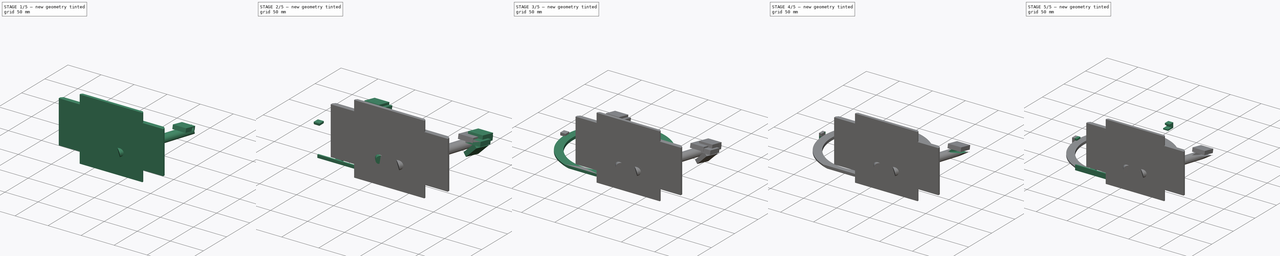
[diagram: build sequence overview — one tinted view per stage of 5, left to right]
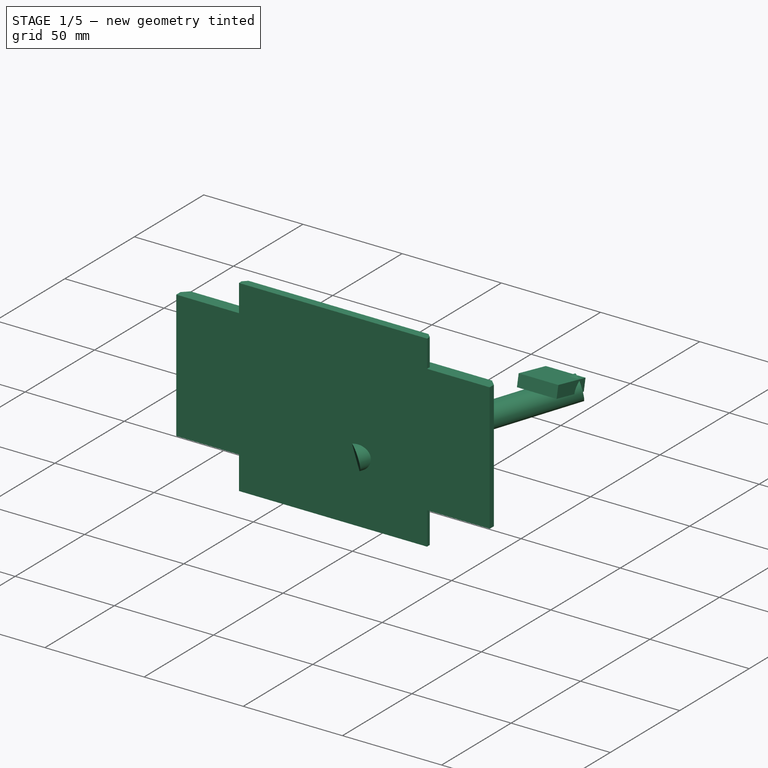
[diagram: stage 1 of 5 — iso view after this stage's code; geometry added in this stage tinted green]
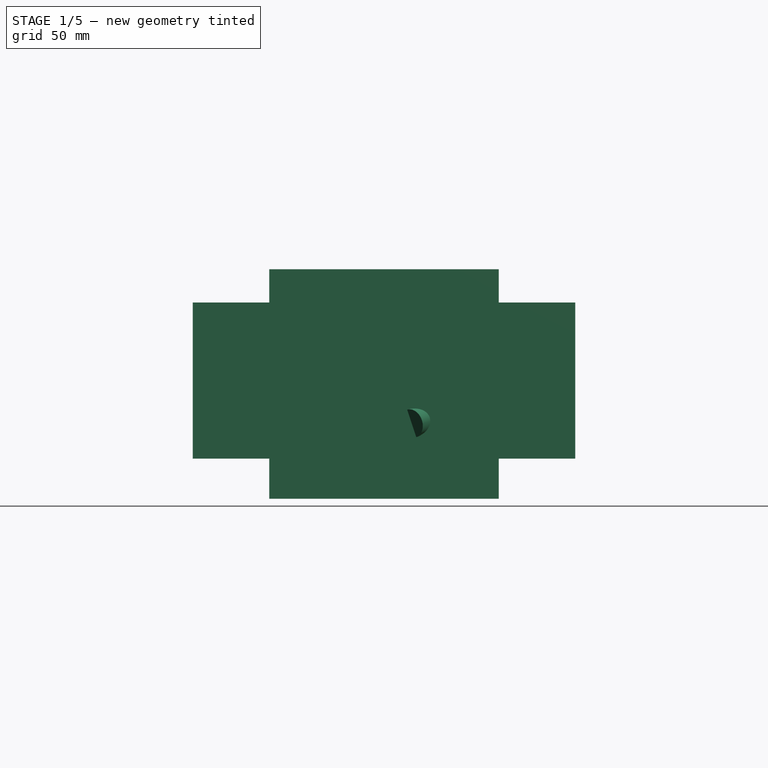
[diagram: stage 1 of 5 — front view after this stage's code; geometry added in this stage tinted green]
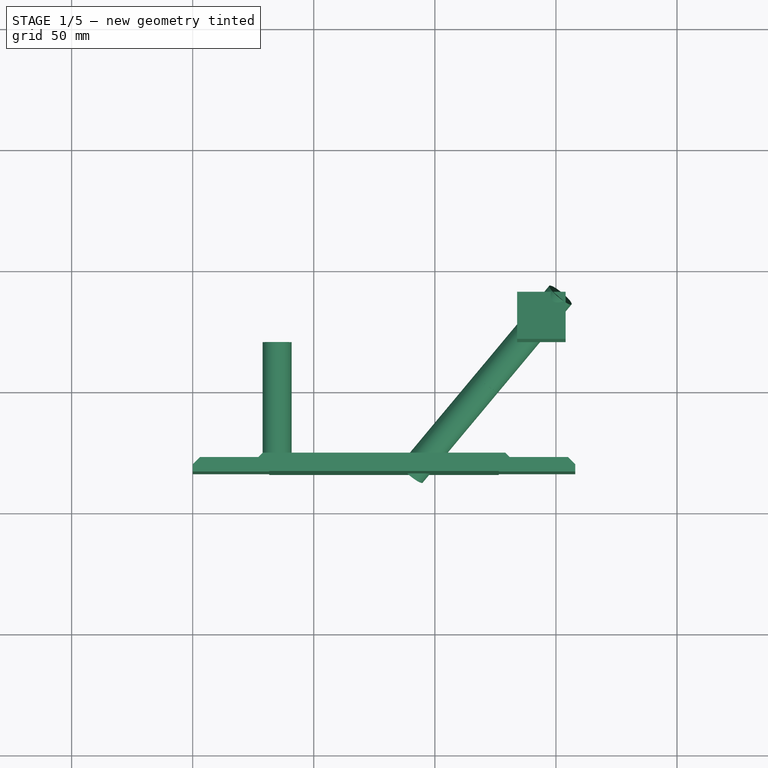
[diagram: stage 1 of 5 — top view after this stage's code; geometry added in this stage tinted green]
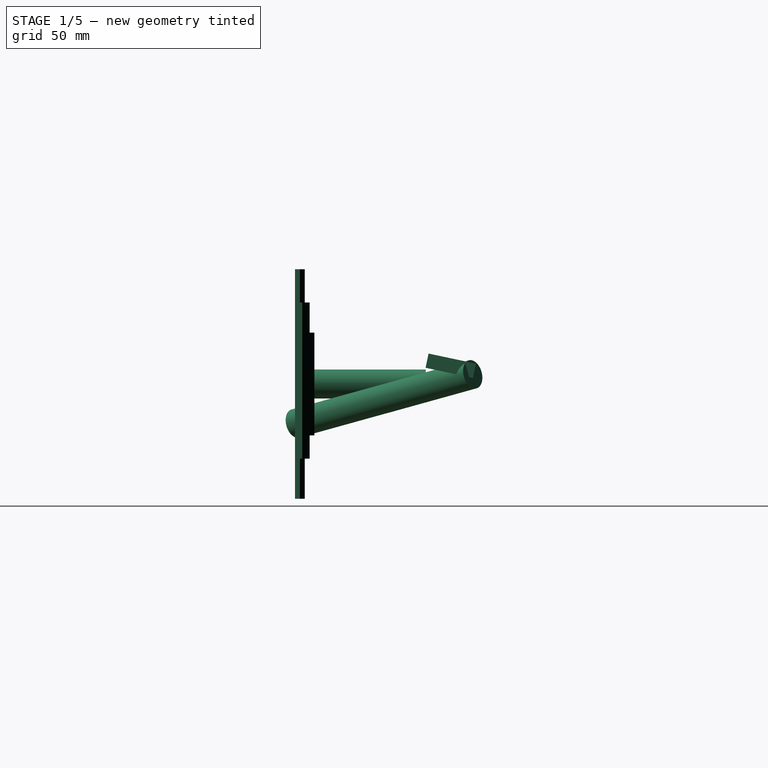
[diagram: stage 1 of 5 — right view after this stage's code; geometry added in this stage tinted green]
FCSTD DOCUMENT  (FreeCAD 0.19R0.19.2)
Label: waferHolder_025
License: All rights reserved
LicenseURL: http://en.wikipedia.org/wiki/All_rights_reserved
objects: Part::Box×56, Part::Chamfer×36, Part::MultiFuse×25, Part::Cylinder×16, Part::Cut×15, Sketcher::SketchObject×9, Part::Extrusion×9, Part::Fuse×5, Part::Mirroring×2
note: 173 computed .brp shape members not serialized (recipe doc carries the construction recipe); baked Part::Feature solids carry a one-line shape summary decoded from their .brp

FEATURE [Part::Box] Box018  label="base001"
  AttacherType = Attacher::AttachEngine3D
  Height = 64.44
  Length = 158
  Placement = pos=(0,-84,16.6) rot=(0,0,1;0rad)
  Width = 6
FEATURE [Part::Box] Box019  label="base002"
  AttacherType = Attacher::AttachEngine3D
  Height = 94.8
  Length = 94.8
  Placement = pos=(31.6,-84,0) rot=(0,0,1;0rad)
  Width = 4
FEATURE [Part::Box] Box020  label="base003"
  AttacherType = Attacher::AttachEngine3D
  Height = 42.44
  Length = 104.28
  Placement = pos=(26.86,-84,26.18) rot=(0,0,1;0rad)
  Width = 8
FEATURE [Part::Chamfer] Chamfer014
  Base = -> Box018
  Edges = 1 edges r=3: [Edge3]
FEATURE [Part::Chamfer] Chamfer015
  Base = -> Chamfer014
  Edges = 1 edges r=3: [Edge15]
FEATURE [Part::Chamfer] Chamfer016
  Base = -> Box019
  Edges = 1 edges r=2: [Edge3]
FEATURE [Part::Chamfer] Chamfer017
  Base = -> Box020
  Edges = 1 edges r=2: [Edge3]
FEATURE [Part::Chamfer] Chamfer018
  Base = -> Chamfer016
  Edges = 1 edges r=2: [Edge15]
FEATURE [Part::Chamfer] Chamfer019
  Base = -> Chamfer017
  Edges = 1 edges r=2: [Edge15]
FEATURE [Part::MultiFuse] Fusion002  label="base004"
  Shapes = -> [Chamfer015,Chamfer018,Chamfer019]
FEATURE [Part::Cylinder] Cylinder
  Angle = 360
  AttacherType = Attacher::AttachEngine3D
  Height = 50
  Placement = pos=(34.86,-30,47.4) rot=(1,0,0;1.5708rad)
  Radius = 6
FEATURE [Part::Cylinder] Cylinder001
  Angle = 360
  AttacherType = Attacher::AttachEngine3D
  Height = 50
  Placement = pos=(34.86,-30,47.4) rot=(1,0,0;1.5708rad)
  Radius = 6
FEATURE [Part::MultiFuse] Fusion006
  Placement = pos=(0,0,0) rot=(1,0,0;0.20944rad)
  Shapes = -> [Cylinder001,Cylinder]
FEATURE [Part::Cylinder] Cylinder002
  Angle = 360
  AttacherType = Attacher::AttachEngine3D
  Height = 50
  Placement = pos=(34.86,-30,47.4) rot=(1,0,0;1.5708rad)
  Radius = 6
FEATURE [Part::Cylinder] Cylinder003
  Angle = 360
  AttacherType = Attacher::AttachEngine3D
  Height = 50
  Placement = pos=(34.86,-30,47.4) rot=(1,0,0;1.5708rad)
  Radius = 6
FEATURE [Part::MultiFuse] Fusion007
  Placement = pos=(0,0,0) rot=(1,0,0;0.20944rad)
  Shapes = -> [Cylinder003,Cylinder002]
FEATURE [Part::MultiFuse] Fusion008
  Placement = pos=(-44.06,-5,11.27) rot=(0,0,1;0.698132rad)
  Shapes = -> [Fusion007,Fusion006]
FEATURE [Part::Cylinder] Cylinder004
  Angle = 360
  AttacherType = Attacher::AttachEngine3D
  Height = 50
  Placement = pos=(34.86,-30,47.4) rot=(1,0,0;1.5708rad)
  Radius = 6
FEATURE [Part::Cylinder] Cylinder005
  Angle = 360
  AttacherType = Attacher::AttachEngine3D
  Height = 50
  Placement = pos=(34.86,-30,47.4) rot=(1,0,0;1.5708rad)
  Radius = 6
FEATURE [Part::MultiFuse] Fusion010
  Placement = pos=(0,0,0) rot=(1,0,0;0.20944rad)
  Shapes = -> [Cylinder005,Cylinder004]
FEATURE [Part::Cylinder] Cylinder006
  Angle = 360
  AttacherType = Attacher::AttachEngine3D
  Height = 50
  Placement = pos=(34.86,-30,47.4) rot=(1,0,0;1.5708rad)
  Radius = 6
FEATURE [Part::Cylinder] Cylinder007
  Angle = 360
  AttacherType = Attacher::AttachEngine3D
  Height = 50
  Placement = pos=(34.86,-30,47.4) rot=(1,0,0;1.5708rad)
  Radius = 6
FEATURE [Part::MultiFuse] Fusion009
  Placement = pos=(0,0,0) rot=(1,0,0;0.20944rad)
  Shapes = -> [Cylinder007,Cylinder006]
FEATURE [Part::MultiFuse] Fusion011
  Placement = pos=(-14,-40.82,1.35) rot=(0,0,1;0.698132rad)
  Shapes = -> [Fusion009,Fusion010]
FEATURE [Part::Fuse] Fusion012
  Base = -> Fusion008
  Placement = pos=(-1.7,2,0) rot=(0,0,1;0rad)
  Tool = -> Fusion011
FEATURE [Part::Mirroring] Part__Mirroring  label="rightStrut"
  Base = (0,0,0)
  Normal = (1,0,0)
  Placement = pos=(158,0,0) rot=(0,0,1;0rad)
  Source = -> Fusion012
FEATURE [Part::Cylinder] Cylinder011
  Angle = 360
  AttacherType = Attacher::AttachEngine3D
  Height = 50
  Placement = pos=(34.86,-30,47.4) rot=(1,0,0;1.5708rad)
  Radius = 6
FEATURE [Part::Cylinder] Cylinder012
  Angle = 360
  AttacherType = Attacher::AttachEngine3D
  Height = 50
  Placement = pos=(34.86,-30,47.4) rot=(1,0,0;1.5708rad)
  Radius = 6
FEATURE [Part::Cylinder] Cylinder013
  Angle = 360
  AttacherType = Attacher::AttachEngine3D
  Height = 50
  Placement = pos=(34.86,-30,47.4) rot=(1,0,0;1.5708rad)
  Radius = 6
FEATURE [Part::Cylinder] Cylinder014
  Angle = 360
  AttacherType = Attacher::AttachEngine3D
  Height = 50
  Placement = pos=(34.86,-30,47.4) rot=(1,0,0;1.5708rad)
  Radius = 6
FEATURE [Part::Cylinder] Cylinder015
  Angle = 360
  AttacherType = Attacher::AttachEngine3D
  Height = 50
  Placement = pos=(34.86,-30,47.4) rot=(1,0,0;1.5708rad)
  Radius = 6
FEATURE [Part::Fuse] Fusion028
  Base = -> Fusion002
  Tool = -> Part__Mirroring
FEATURE [Part::Box] Box055  label="reoveStrustRight003"
  AttacherType = Attacher::AttachEngine3D
  Height = 6
  Length = 20
  Placement = pos=(134,-30.1,54.1) rot=(-1,0,0;0.20944rad)
  Width = 20
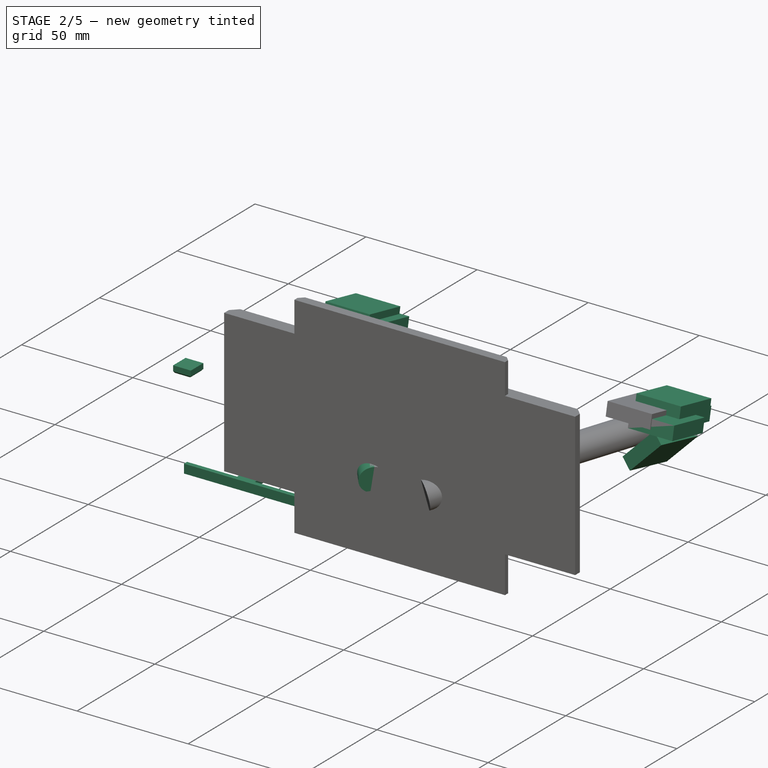
[diagram: stage 2 of 5 — iso view after this stage's code; geometry added in this stage tinted green]
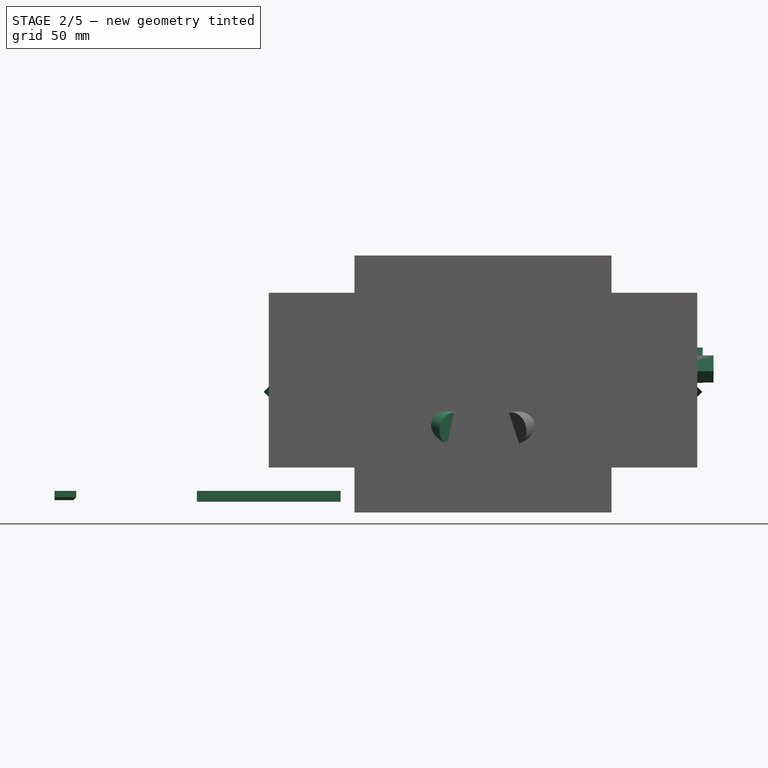
[diagram: stage 2 of 5 — front view after this stage's code; geometry added in this stage tinted green]
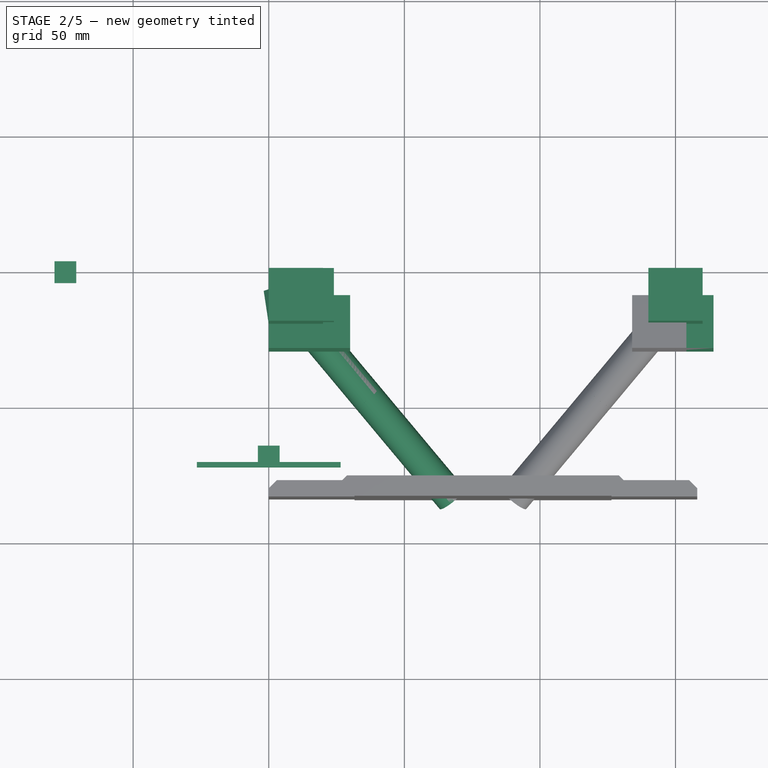
[diagram: stage 2 of 5 — top view after this stage's code; geometry added in this stage tinted green]
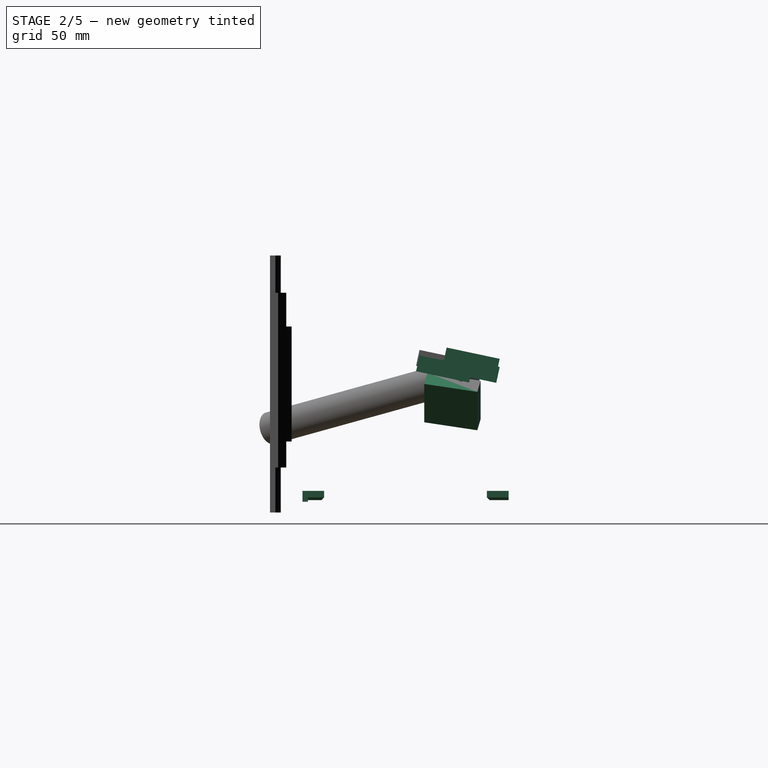
[diagram: stage 2 of 5 — right view after this stage's code; geometry added in this stage tinted green]
FEATURE [Part::Box] Box023  label="holderBitLeft007"
  AttacherType = Attacher::AttachEngine3D
  Height = 3.4
  Length = 8
  Placement = pos=(-79,-4,4.6) rot=(0,0,1;0rad)
  Width = 8
FEATURE [Part::Chamfer] Chamfer021
  Base = -> Box023
  Edges = 1 edges r=1: [Edge8]
FEATURE [Part::Chamfer] Chamfer025
  Base = -> Chamfer021
  Edges = 1 edges r=1: [Edge5]
FEATURE [Part::Box] Box029  label="holderBottom006"
  AttacherType = Attacher::AttachEngine3D
  Height = 4
  Length = 53
  Placement = pos=(-26.5,-72,4) rot=(0,0,1;0rad)
  Width = 2
FEATURE [Part::Box] Box030  label="holderBottom007"
  AttacherType = Attacher::AttachEngine3D
  Height = 3.4
  Length = 8
  Placement = pos=(-4,-72,4.6) rot=(0,0,1;0rad)
  Width = 8
FEATURE [Part::Chamfer] Chamfer027  label="holderBottom005"
  Base = -> Box030
  Edges = 3 edges r=1: [Edge4,Edge8,Edge11]
FEATURE [Part::Box] Box034  label="removeStrutLeft001"
  AttacherType = Attacher::AttachEngine3D
  Height = 6
  Length = 20
  Placement = pos=(4,-30.1,54.1) rot=(-1,0,0;0.20944rad)
  Width = 20
FEATURE [Part::Box] Box035  label="removeStrutLeft002"
  AttacherType = Attacher::AttachEngine3D
  Height = 6
  Length = 20
  Placement = pos=(4,-30.1,54.1) rot=(-1,0,0;0.20944rad)
  Width = 20
FEATURE [Part::Fuse] Fusion013
  Base = -> Box034
  Placement = pos=(-40,3,12) rot=(0,1,0;0.785398rad)
  Tool = -> Box035
FEATURE [Part::Mirroring] Part__Mirroring001  label="removeFromRightStrust002"
  Base = (0,0,0)
  Normal = (1,0,0)
  Placement = pos=(158,0,0) rot=(0,0,1;0rad)
  Source = -> Fusion013
FEATURE [Part::Box] Box036  label="reoveStrustRight001"
  AttacherType = Attacher::AttachEngine3D
  Height = 6
  Length = 20
  Placement = pos=(144,-30.1,52.1) rot=(-1,0,0;0.20944rad)
  Width = 20
FEATURE [Part::Box] Box037  label="reoveStrustLeft002"
  AttacherType = Attacher::AttachEngine3D
  Height = 6
  Length = 20
  Placement = pos=(0,-30.1,52.1) rot=(-1,0,0;0.20944rad)
  Width = 20
FEATURE [Part::MultiFuse] Fusion016  label="removeFromStruts"
  Shapes = -> [Box037,Box036]
FEATURE [Part::Cylinder] Cylinder008
  Angle = 360
  AttacherType = Attacher::AttachEngine3D
  Height = 50
  Placement = pos=(34.86,-30,47.4) rot=(1,0,0;1.5708rad)
  Radius = 6
FEATURE [Part::Cylinder] Cylinder009
  Angle = 360
  AttacherType = Attacher::AttachEngine3D
  Height = 50
  Placement = pos=(34.86,-30,47.4) rot=(1,0,0;1.5708rad)
  Radius = 6
FEATURE [Part::Cylinder] Cylinder010
  Angle = 360
  AttacherType = Attacher::AttachEngine3D
  Height = 50
  Placement = pos=(34.86,-30,47.4) rot=(1,0,0;1.5708rad)
  Radius = 6
FEATURE [Part::MultiFuse] Fusion020
  Placement = pos=(0,0,0) rot=(1,0,0;0.20944rad)
  Shapes = -> [Cylinder010,Cylinder009]
FEATURE [Part::MultiFuse] Fusion019
  Placement = pos=(0,0,0) rot=(1,0,0;0.20944rad)
  Shapes = -> [Cylinder011,Cylinder008]
FEATURE [Part::MultiFuse] Fusion017
  Placement = pos=(0,0,0) rot=(1,0,0;0.20944rad)
  Shapes = -> [Cylinder013,Cylinder012]
FEATURE [Part::MultiFuse] Fusion023
  Placement = pos=(-44.06,-5,11.27) rot=(0,0,1;0.698132rad)
  Shapes = -> [Fusion017,Fusion019]
FEATURE [Part::MultiFuse] Fusion021
  Placement = pos=(0,0,0) rot=(1,0,0;0.20944rad)
  Shapes = -> [Cylinder015,Cylinder014]
FEATURE [Part::MultiFuse] Fusion022
  Placement = pos=(-14,-40.82,1.35) rot=(0,0,1;0.698132rad)
  Shapes = -> [Fusion020,Fusion021]
FEATURE [Part::Fuse] Fusion018  label="leftstrut"
  Base = -> Fusion023
  Placement = pos=(-1.7,2,0) rot=(0,0,1;0rad)
  Tool = -> Fusion022
FEATURE [Part::Box] Box048  label="removeStrutLeft003"
  AttacherType = Attacher::AttachEngine3D
  Height = 6
  Length = 20
  Placement = pos=(4,-30.1,54.1) rot=(-1,0,0;0.20944rad)
  Width = 20
FEATURE [Part::Box] Box049  label="removeStrutLeft004"
  AttacherType = Attacher::AttachEngine3D
  Height = 6
  Length = 20
  Placement = pos=(4,-30.1,54.1) rot=(-1,0,0;0.20944rad)
  Width = 20
FEATURE [Part::Fuse] Fusion024  label="removeFromLeftStrut002"
  Base = -> Box048
  Placement = pos=(-40,3,12) rot=(0,1,0;0.785398rad)
  Tool = -> Box049
FEATURE [Part::Box] Box050  label="reoveStrustRight002"
  AttacherType = Attacher::AttachEngine3D
  Height = 6
  Length = 20
  Placement = pos=(10,-30.1,52.1) rot=(-1,0,0;0.20944rad)
  Width = 20
FEATURE [Part::Box] Box051  label="removeStrutLeft005"
  AttacherType = Attacher::AttachEngine3D
  Height = 6
  Length = 20
  Placement = pos=(0,-20.1,54.98) rot=(-1,0,0;0.20944rad)
  Width = 20
FEATURE [Part::Box] Box052  label="removeStrutRight006"
  AttacherType = Attacher::AttachEngine3D
  Height = 6
  Length = 20
  Placement = pos=(140,-20.1,51.98) rot=(-1,0,0;0.20944rad)
  Width = 20
FEATURE [Part::Box] Box053  label="removeStrutLeft007"
  AttacherType = Attacher::AttachEngine3D
  Height = 6
  Length = 20
  Placement = pos=(4,-20.1,51.98) rot=(-1,0,0;0.20944rad)
  Width = 20
FEATURE [Part::Box] Box054  label="removeStrutRight008"
  AttacherType = Attacher::AttachEngine3D
  Height = 6
  Length = 20
  Placement = pos=(140,-20.1,54.98) rot=(-1,0,0;0.20944rad)
  Width = 20
FEATURE [Part::MultiFuse] Fusion025
  Shapes = -> [Box051,Box052,Box053,Box054,Part__Mirroring001,Fusion024]
FEATURE [Part::MultiFuse] Fusion029  label="stand"
  Shapes = -> [Fusion018,Fusion028]
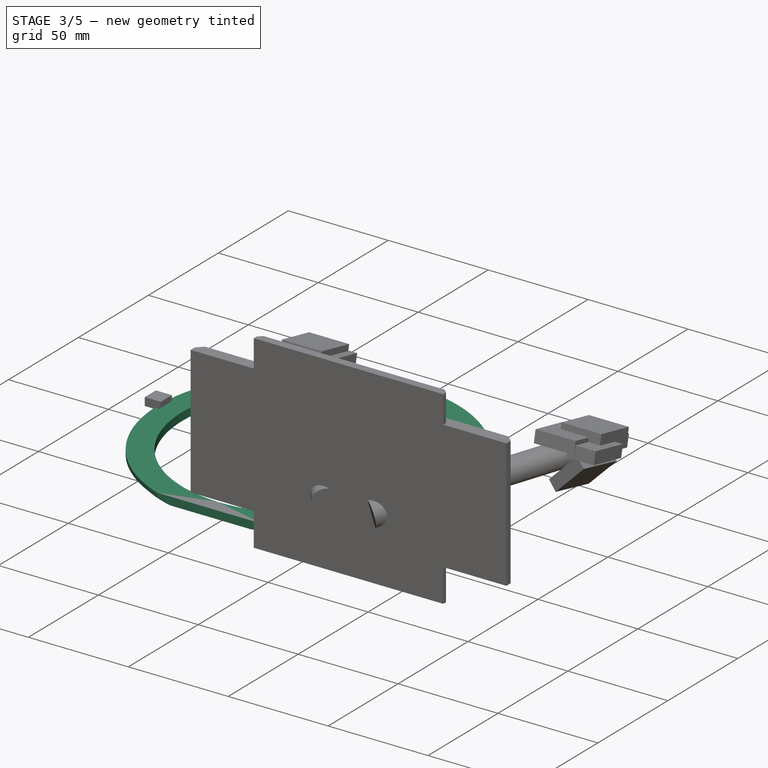
[diagram: stage 3 of 5 — iso view after this stage's code; geometry added in this stage tinted green]
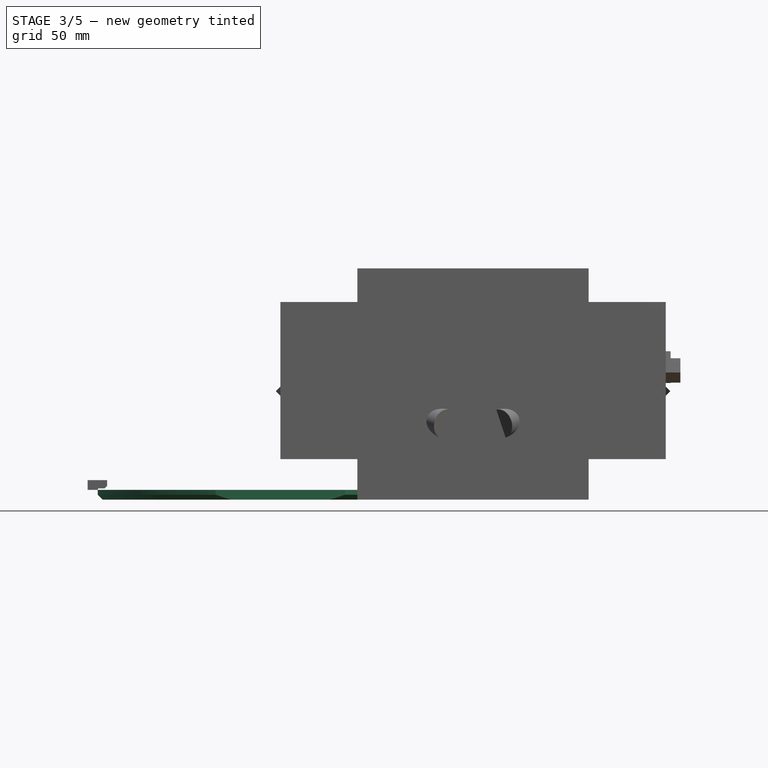
[diagram: stage 3 of 5 — front view after this stage's code; geometry added in this stage tinted green]
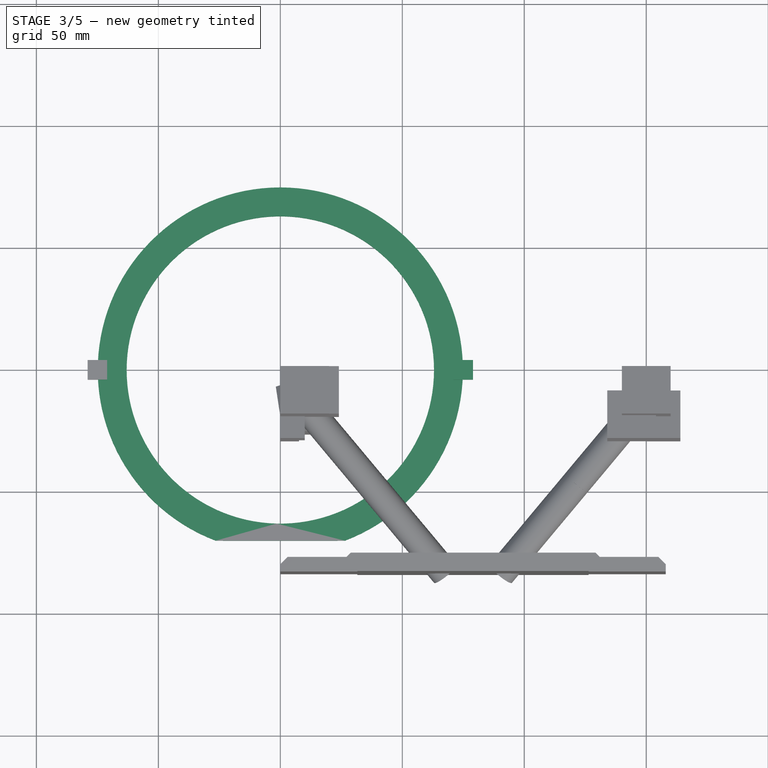
[diagram: stage 3 of 5 — top view after this stage's code; geometry added in this stage tinted green]
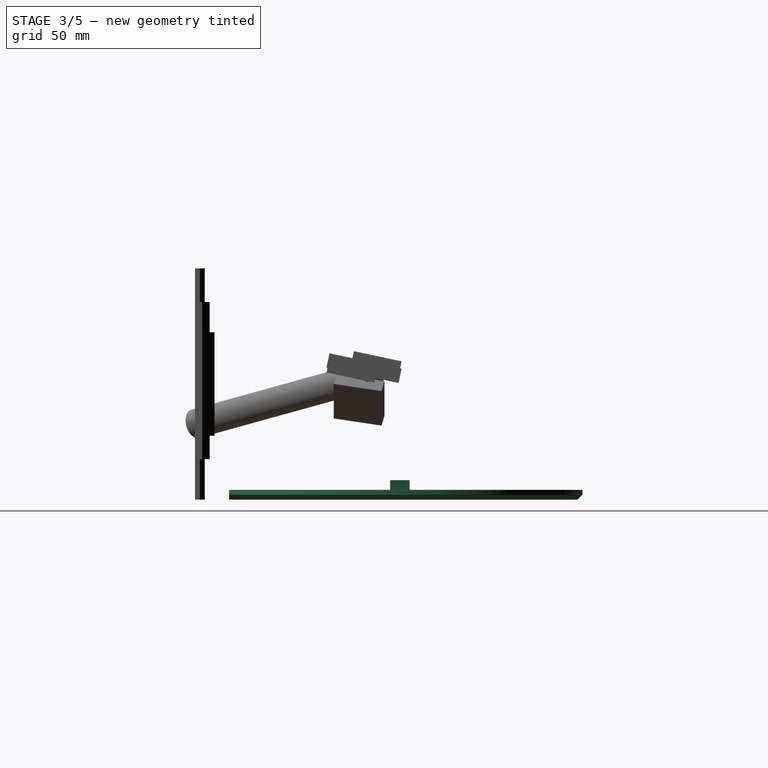
[diagram: stage 3 of 5 — right view after this stage's code; geometry added in this stage tinted green]
FEATURE [Part::Box] Box021  label="holderBitLeft006"
  AttacherType = Attacher::AttachEngine3D
  Height = 4
  Length = 6
  Placement = pos=(-79,-4,0) rot=(0,0,1;0rad)
  Width = 8
FEATURE [Part::Box] Box022  label="holderBitright003"
  AttacherType = Attacher::AttachEngine3D
  Height = 4
  Length = 6
  Placement = pos=(73,-4,0) rot=(0,0,1;0rad)
  Width = 8
FEATURE [Part::Box] Box024  label="holderBitRight003"
  AttacherType = Attacher::AttachEngine3D
  Height = 3.4
  Length = 8
  Placement = pos=(71,-4,4.6) rot=(0,0,1;0rad)
  Width = 8
FEATURE [Sketcher::SketchObject] Sketch005
  FullyConstrained = true
  sketch-geometry (3):
    g0: Circle CenterX=-3.1415e-12 CenterY=5.6243e-12 CenterZ=0 NormalX=0 NormalY=0 NormalZ=1 AngleXU=0 Radius=63
    g1: ArcOfCircle CenterX=-3.1415e-12 CenterY=5.6243e-12 CenterZ=0 NormalX=0 NormalY=0 NormalZ=1 AngleXU=0 Radius=74.8482 StartAngle=5.07429 EndAngle=10.6337
    g2: LineSegment StartX=-26.5 StartY=-70.0001 StartZ=0 EndX=26.5 EndY=-70.0001 EndZ=0
  constraints (6):
    c: Block(g0)
    c: Coincident(g1,g0)
    c: Block(g1)
    c: Coincident(g2,g1)
    c: Coincident(g2,g1)
    c: Horizontal(g2)
FEATURE [Part::Box] Box025  label="holderBitLeft008"
  AttacherType = Attacher::AttachEngine3D
  Height = 4
  Length = 8
  Placement = pos=(-79,-4,0) rot=(0,0,1;0rad)
  Width = 8
FEATURE [Part::Box] Box026  label="bitHolderTopCutout004"
  AttacherType = Attacher::AttachEngine3D
  Height = 4
  Length = 8
  Placement = pos=(-4,67,-2) rot=(0,0,1;0rad)
  Width = 12
FEATURE [Part::Extrusion] Extrude006  label="mainHolderRing010"
  Base = -> Sketch005
  Dir = (0,0,1)
  DirMode = 2
  FaceMakerClass = Part::FaceMakerBullseye
  LengthFwd = 4
  LengthRev = 0
  Solid = true
  Symmetric = false
FEATURE [Part::Box] Box027  label="holderBitRight004"
  AttacherType = Attacher::AttachEngine3D
  Height = 4
  Length = 8
  Placement = pos=(71,-4,0) rot=(0,0,1;0rad)
  Width = 8
FEATURE [Part::Chamfer] Chamfer020
  Base = -> Extrude006
  Edges = 1 edges r=2: [Edge3]
FEATURE [Part::Cut] Cut008  label="mainHolderRing011"
  Base = -> Chamfer020
  Tool = -> Box026
FEATURE [Part::MultiFuse] Fusion004  label="holders001"
  Shapes = -> [Box021,Box022]
FEATURE [Sketcher::SketchObject] Sketch006
  FullyConstrained = true
  sketch-geometry (3):
    g0: Circle CenterX=-3.1415e-12 CenterY=5.6243e-12 CenterZ=0 NormalX=0 NormalY=0 NormalZ=1 AngleXU=0 Radius=63
    g1: ArcOfCircle CenterX=-3.1415e-12 CenterY=5.6243e-12 CenterZ=0 NormalX=0 NormalY=0 NormalZ=1 AngleXU=0 Radius=74.8482 StartAngle=5.07429 EndAngle=10.6337
    g2: LineSegment StartX=-26.5 StartY=-70.0001 StartZ=0 EndX=26.5 EndY=-70.0001 EndZ=0
  constraints (6):
    c: Block(g0)
    c: Coincident(g1,g0)
    c: Block(g1)
    c: Coincident(g2,g1)
    c: Coincident(g2,g1)
    c: Horizontal(g2)
FEATURE [Part::Extrusion] Extrude005  label="mainHolderRing009"
  Base = -> Sketch006
  Dir = (0,0,1)
  DirMode = 2
  FaceMakerClass = Part::FaceMakerBullseye
  LengthFwd = 4
  LengthRev = 0
  Solid = true
  Symmetric = false
FEATURE [Part::Cut] Cut009  label="leftAndRightHolderBits001"
  Base = -> Fusion004
  Placement = pos=(0,0,4) rot=(0,0,1;0rad)
  Tool = -> Extrude005
FEATURE [Part::Chamfer] Chamfer022
  Base = -> Box024
  Edges = 1 edges r=1: [Edge4]
FEATURE [Part::Chamfer] Chamfer023
  Base = -> Chamfer022
  Edges = 1 edges r=1: [Edge13]
FEATURE [Part::Chamfer] Chamfer024
  Base = -> Chamfer023
  Edges = 1 edges r=1: [Edge5]
FEATURE [Part::Box] Box028  label="holderBottom004"
  AttacherType = Attacher::AttachEngine3D
  Height = 4
  Length = 53
  Placement = pos=(-26.5,-72,0) rot=(0,0,1;0rad)
  Width = 4.5
FEATURE [Part::Chamfer] Chamfer026
  Base = -> Chamfer025
  Edges = 1 edges r=1: [Edge16]
FEATURE [Part::MultiFuse] Fusion005  label="removeRingHolder"
  Placement = pos=(79,-8.35,45.4) rot=(1,0,0;6.07375rad)
  Shapes = -> [Box025,Box027,Cut008,Cut009,Chamfer024,Chamfer026,Box028,Box029,Chamfer027]
FEATURE [Sketcher::SketchObject] Sketch007
  FullyConstrained = true
  sketch-geometry (3):
    g0: Circle CenterX=-3.1415e-12 CenterY=5.6243e-12 CenterZ=0 NormalX=0 NormalY=0 NormalZ=1 AngleXU=0 Radius=63
    g1: ArcOfCircle CenterX=-3.1415e-12 CenterY=5.6243e-12 CenterZ=0 NormalX=0 NormalY=0 NormalZ=1 AngleXU=0 Radius=74.8482 StartAngle=5.07429 EndAngle=10.6337
    g2: LineSegment StartX=-26.5 StartY=-70.0001 StartZ=0 EndX=26.5 EndY=-70.0001 EndZ=0
  constraints (6):
    c: Block(g0)
    c: Coincident(g1,g0)
    c: Block(g1)
    c: Coincident(g2,g1)
    c: Coincident(g2,g1)
    c: Horizontal(g2)
FEATURE [Part::Box] Box038  label="holderBitLeft009"
  AttacherType = Attacher::AttachEngine3D
  Height = 4
  Length = 6
  Placement = pos=(-79,-4,0) rot=(0,0,1;0rad)
  Width = 8
FEATURE [Part::Box] Box039  label="holderBitright004"
  AttacherType = Attacher::AttachEngine3D
  Height = 4
  Length = 6
  Placement = pos=(73,-4,0) rot=(0,0,1;0rad)
  Width = 8
FEATURE [Part::Box] Box040  label="holderBitLeft010"
  AttacherType = Attacher::AttachEngine3D
  Height = 3.4
  Length = 8
  Placement = pos=(-79,-4,4.6) rot=(0,0,1;0rad)
  Width = 8
FEATURE [Part::Box] Box041  label="holderBitRight005"
  AttacherType = Attacher::AttachEngine3D
  Height = 3.4
  Length = 8
  Placement = pos=(71,-4,4.6) rot=(0,0,1;0rad)
  Width = 8
FEATURE [Part::Extrusion] Extrude008  label="mainHolderRing013"
  Base = -> Sketch007
  Dir = (0,0,1)
  DirMode = 2
  FaceMakerClass = Part::FaceMakerBullseye
  LengthFwd = 4
  LengthRev = 0
  Solid = true
  Symmetric = false
FEATURE [Sketcher::SketchObject] Sketch008
  FullyConstrained = true
  sketch-geometry (3):
    g0: Circle CenterX=-3.1415e-12 CenterY=5.6243e-12 CenterZ=0 NormalX=0 NormalY=0 NormalZ=1 AngleXU=0 Radius=63
    g1: ArcOfCircle CenterX=-3.1415e-12 CenterY=5.6243e-12 CenterZ=0 NormalX=0 NormalY=0 NormalZ=1 AngleXU=0 Radius=74.8482 StartAngle=5.07429 EndAngle=10.6337
    g2: LineSegment StartX=-26.5 StartY=-70.0001 StartZ=0 EndX=26.5 EndY=-70.0001 EndZ=0
  constraints (6):
    c: Block(g0)
    c: Coincident(g1,g0)
    c: Block(g1)
    c: Coincident(g2,g1)
    c: Coincident(g2,g1)
    c: Horizontal(g2)
FEATURE [Part::Extrusion] Extrude007  label="mainHolderRing012"
  Base = -> Sketch008
  Dir = (0,0,1)
  DirMode = 2
  FaceMakerClass = Part::FaceMakerBullseye
  LengthFwd = 4
  LengthRev = 0
  Solid = true
  Symmetric = false
FEATURE [Part::Chamfer] Chamfer032
  Base = -> Extrude008
  Edges = 1 edges r=2: [Edge3]
FEATURE [Part::MultiFuse] Fusion015  label="holders002"
  Shapes = -> [Box038,Box039]
FEATURE [Part::Cut] Cut011  label="leftAndRightHolderBits002"
  Base = -> Fusion015
  Placement = pos=(0,0,4) rot=(0,0,1;0rad)
  Tool = -> Extrude007
FEATURE [Part::Chamfer] Chamfer033
  Base = -> Box040
  Edges = 1 edges r=1: [Edge8]
FEATURE [Part::Chamfer] Chamfer034
  Base = -> Box041
  Edges = 1 edges r=1: [Edge4]
FEATURE [Part::Chamfer] Chamfer035
  Base = -> Chamfer034
  Edges = 1 edges r=1: [Edge13]
FEATURE [Part::Cut] Cut012  label="removeFromStruts001"
  Base = -> Fusion016
  Tool = -> Fusion005
FEATURE [Part::Cut] Cut013  label="removeFromStruts003"
  Base = -> Cut012
  Tool = -> Box050
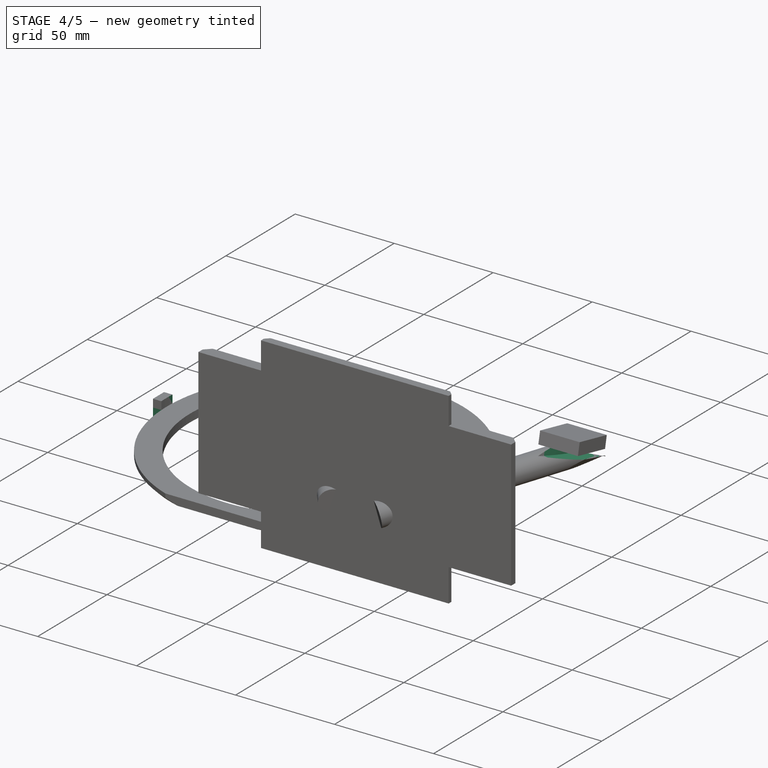
[diagram: stage 4 of 5 — iso view after this stage's code; geometry added in this stage tinted green]
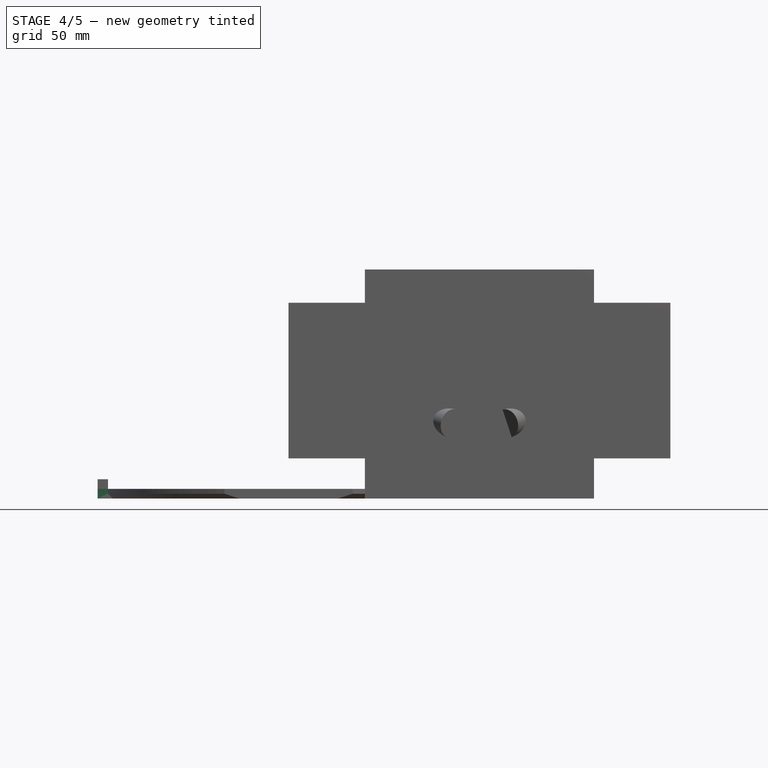
[diagram: stage 4 of 5 — front view after this stage's code; geometry added in this stage tinted green]
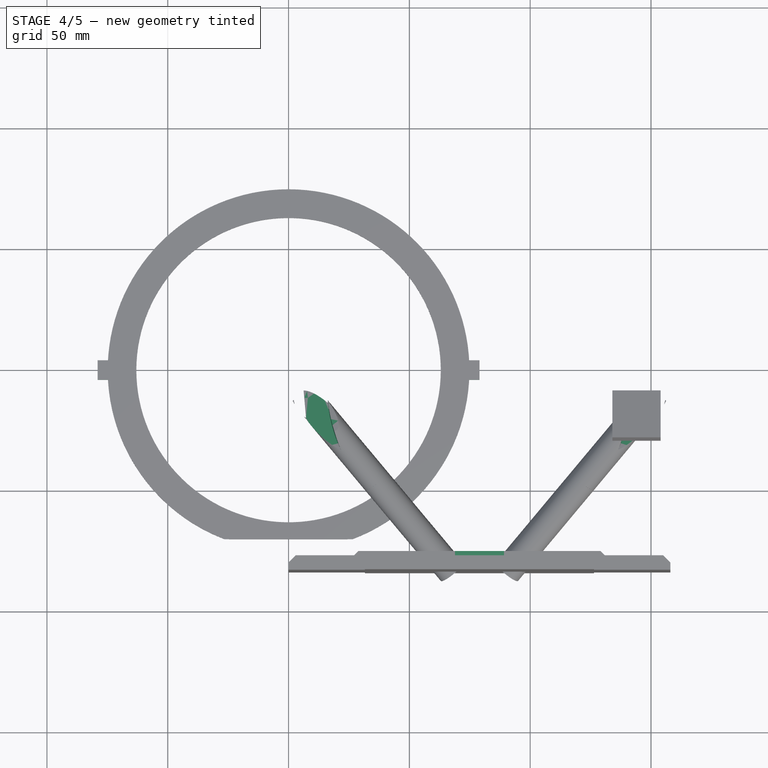
[diagram: stage 4 of 5 — top view after this stage's code; geometry added in this stage tinted green]
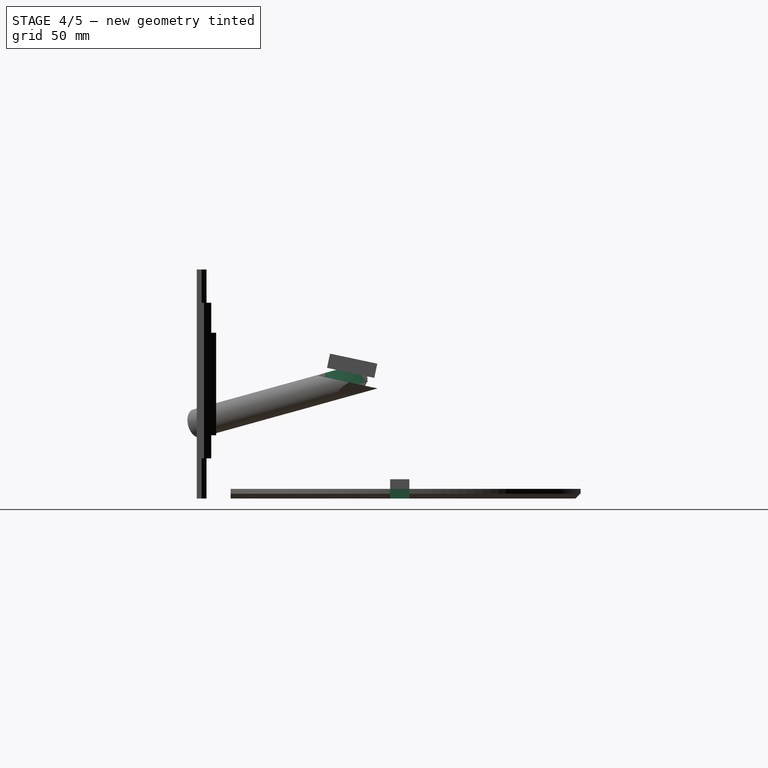
[diagram: stage 4 of 5 — right view after this stage's code; geometry added in this stage tinted green]
FEATURE [Part::Box] Box007  label="holderBitRight002"
  AttacherType = Attacher::AttachEngine3D
  Height = 3.4
  Length = 8
  Placement = pos=(71,-4,4.6) rot=(0,0,1;0rad)
  Width = 8
FEATURE [Part::Chamfer] Chamfer006
  Base = -> Box007
  Edges = 1 edges r=1: [Edge4]
FEATURE [Part::Chamfer] Chamfer007
  Base = -> Chamfer006
  Edges = 1 edges r=1: [Edge13]
FEATURE [Part::Chamfer] Chamfer008
  Base = -> Chamfer007
  Edges = 1 edges r=1: [Edge5]
FEATURE [Sketcher::SketchObject] Sketch001
  FullyConstrained = true
  sketch-geometry (3):
    g0: Circle CenterX=-3.1415e-12 CenterY=5.6243e-12 CenterZ=0 NormalX=0 NormalY=0 NormalZ=1 AngleXU=0 Radius=63
    g1: ArcOfCircle CenterX=-3.1415e-12 CenterY=5.6243e-12 CenterZ=0 NormalX=0 NormalY=0 NormalZ=1 AngleXU=0 Radius=74.8482 StartAngle=5.07429 EndAngle=10.6337
    g2: LineSegment StartX=-26.5 StartY=-70.0001 StartZ=0 EndX=26.5 EndY=-70.0001 EndZ=0
  constraints (6):
    c: Block(g0)
    c: Coincident(g1,g0)
    c: Block(g1)
    c: Coincident(g2,g1)
    c: Coincident(g2,g1)
    c: Horizontal(g2)
FEATURE [Part::Extrusion] Extrude001  label="mainHolderRing002"
  Base = -> Sketch001
  Dir = (0,0,1)
  DirMode = 2
  FaceMakerClass = Part::FaceMakerBullseye
  LengthFwd = 4
  LengthRev = 0
  Solid = true
  Symmetric = false
FEATURE [Part::Box] Box005  label="holderBitright002"
  AttacherType = Attacher::AttachEngine3D
  Height = 4
  Length = 6
  Placement = pos=(73,-4,0) rot=(0,0,1;0rad)
  Width = 8
FEATURE [Part::Box] Box004  label="holderBitLeft001"
  AttacherType = Attacher::AttachEngine3D
  Height = 4
  Length = 6
  Placement = pos=(-79,-4,0) rot=(0,0,1;0rad)
  Width = 8
FEATURE [Part::MultiFuse] Fusion  label="holders"
  Shapes = -> [Box004,Box005]
FEATURE [Part::Cut] Cut001  label="leftAndRightHolderBits"
  Base = -> Fusion
  Placement = pos=(0,0,4) rot=(0,0,1;0rad)
  Tool = -> Extrude001
FEATURE [Part::Box] Box001  label="bitHolderTopCutout"
  AttacherType = Attacher::AttachEngine3D
  Height = 4
  Length = 8
  Placement = pos=(-4,67,-2) rot=(0,0,1;0rad)
  Width = 12
FEATURE [Sketcher::SketchObject] Sketch
  FullyConstrained = true
  sketch-geometry (3):
    g0: Circle CenterX=-3.1415e-12 CenterY=5.6243e-12 CenterZ=0 NormalX=0 NormalY=0 NormalZ=1 AngleXU=0 Radius=63
    g1: ArcOfCircle CenterX=-3.1415e-12 CenterY=5.6243e-12 CenterZ=0 NormalX=0 NormalY=0 NormalZ=1 AngleXU=0 Radius=74.8482 StartAngle=5.07429 EndAngle=10.6337
    g2: LineSegment StartX=-26.5 StartY=-70.0001 StartZ=0 EndX=26.5 EndY=-70.0001 EndZ=0
  constraints (6):
    c: Block(g0)
    c: Coincident(g1,g0)
    c: Block(g1)
    c: Coincident(g2,g1)
    c: Coincident(g2,g1)
    c: Horizontal(g2)
FEATURE [Part::Extrusion] Extrude  label="mainHolderRing"
  Base = -> Sketch
  Dir = (0,0,1)
  DirMode = 2
  FaceMakerClass = Part::FaceMakerBullseye
  LengthFwd = 4
  LengthRev = 0
  Solid = true
  Symmetric = false
FEATURE [Part::Chamfer] Chamfer
  Base = -> Extrude
  Edges = 1 edges r=2: [Edge3]
FEATURE [Part::Cut] Cut  label="mainHolderRing001"
  Base = -> Chamfer
  Tool = -> Box001
FEATURE [Part::Box] Box002  label="holderBitRight"
  AttacherType = Attacher::AttachEngine3D
  Height = 4
  Length = 8
  Placement = pos=(71,-4,0) rot=(0,0,1;0rad)
  Width = 8
FEATURE [Part::Box] Box  label="holderBitLeft"
  AttacherType = Attacher::AttachEngine3D
  Height = 4
  Length = 8
  Placement = pos=(-79,-4,0) rot=(0,0,1;0rad)
  Width = 8
FEATURE [Part::Box] Box031  label="base005"
  AttacherType = Attacher::AttachEngine3D
  Height = 42.44
  Length = 20.28
  Placement = pos=(68.86,-84,26.18) rot=(0,0,1;0rad)
  Width = 8
FEATURE [Part::Box] Box032  label="removeStrutLeft"
  AttacherType = Attacher::AttachEngine3D
  Height = 6
  Length = 20
  Placement = pos=(4,-30.1,54.1) rot=(1,0,0;6.07375rad)
  Width = 20
FEATURE [Part::Box] Box033  label="reoveStrustRight"
  AttacherType = Attacher::AttachEngine3D
  Height = 6
  Length = 20
  Placement = pos=(134,-30.1,54.1) rot=(-1,0,0;0.20944rad)
  Width = 20
FEATURE [Part::Box] Box042  label="holderBitRight006"
  AttacherType = Attacher::AttachEngine3D
  Height = 4
  Length = 8
  Placement = pos=(71,-4,0) rot=(0,0,1;0rad)
  Width = 8
FEATURE [Part::Box] Box043  label="holderBottom008"
  AttacherType = Attacher::AttachEngine3D
  Height = 4
  Length = 53
  Placement = pos=(-26.5,-72,0) rot=(0,0,1;0rad)
  Width = 4.5
FEATURE [Part::Box] Box044  label="holderBottom009"
  AttacherType = Attacher::AttachEngine3D
  Height = 4
  Length = 53
  Placement = pos=(-26.5,-72,4) rot=(0,0,1;0rad)
  Width = 2
FEATURE [Part::Box] Box045  label="holderBottom010"
  AttacherType = Attacher::AttachEngine3D
  Height = 3.4
  Length = 8
  Placement = pos=(-4,-72,4.6) rot=(0,0,1;0rad)
  Width = 8
FEATURE [Part::Box] Box046  label="holderBitLeft011"
  AttacherType = Attacher::AttachEngine3D
  Height = 4
  Length = 8
  Placement = pos=(-79,-4,0) rot=(0,0,1;0rad)
  Width = 8
FEATURE [Part::Box] Box047  label="bitHolderTopCutout005"
  AttacherType = Attacher::AttachEngine3D
  Height = 4
  Length = 8
  Placement = pos=(-4,67,-2) rot=(0,0,1;0rad)
  Width = 12
FEATURE [Part::Chamfer] Chamfer031  label="holderBottom011"
  Base = -> Box045
  Edges = 3 edges r=1: [Edge4,Edge8,Edge11]
FEATURE [Part::Cut] Cut010  label="mainHolderRing014"
  Base = -> Chamfer032
  Tool = -> Box047
FEATURE [Part::Chamfer] Chamfer029
  Base = -> Chamfer033
  Edges = 1 edges r=1: [Edge5]
FEATURE [Part::Chamfer] Chamfer030
  Base = -> Chamfer029
  Edges = 1 edges r=1: [Edge16]
FEATURE [Part::Chamfer] Chamfer028
  Base = -> Chamfer035
  Edges = 1 edges r=1: [Edge5]
FEATURE [Part::MultiFuse] Fusion014  label="removeRingHolder001"
  Placement = pos=(79,-8.35,45.4) rot=(-1,0,0;0.20944rad)
  Shapes = -> [Box046,Box042,Cut010,Cut011,Chamfer028,Chamfer030,Box043,Box044,Chamfer031]
FEATURE [Part::MultiFuse] Fusion026
  Shapes = -> [Fusion025,Fusion014,Cut013]
FEATURE [Part::MultiFuse] Fusion027  label="removeFromStand"
  Shapes = -> [Fusion026,Box033,Box032]
FEATURE [Part::Cut] Cut014
  Base = -> Fusion029
  Tool = -> Fusion027
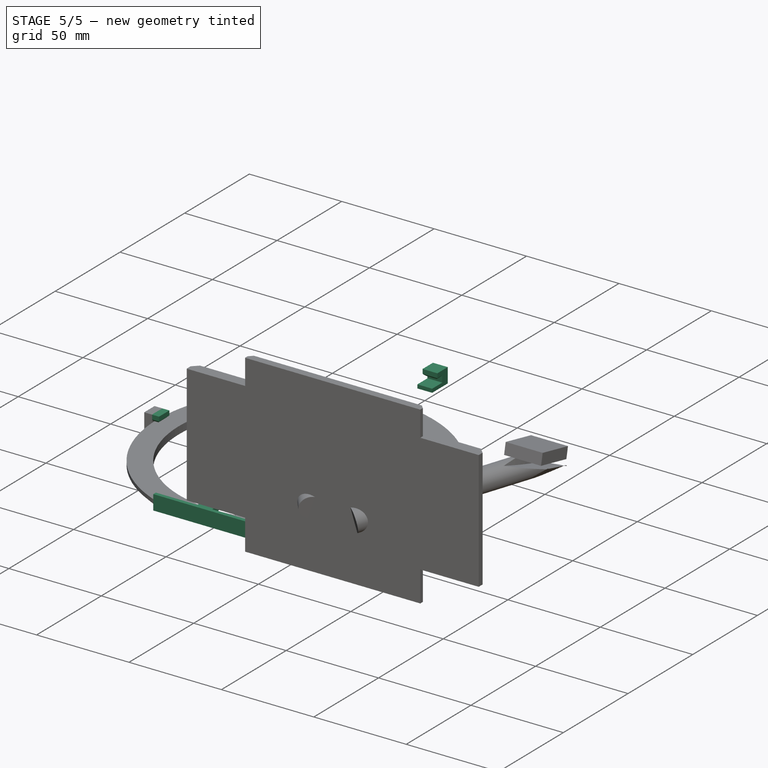
[diagram: stage 5 of 5 — iso view after this stage's code; geometry added in this stage tinted green]
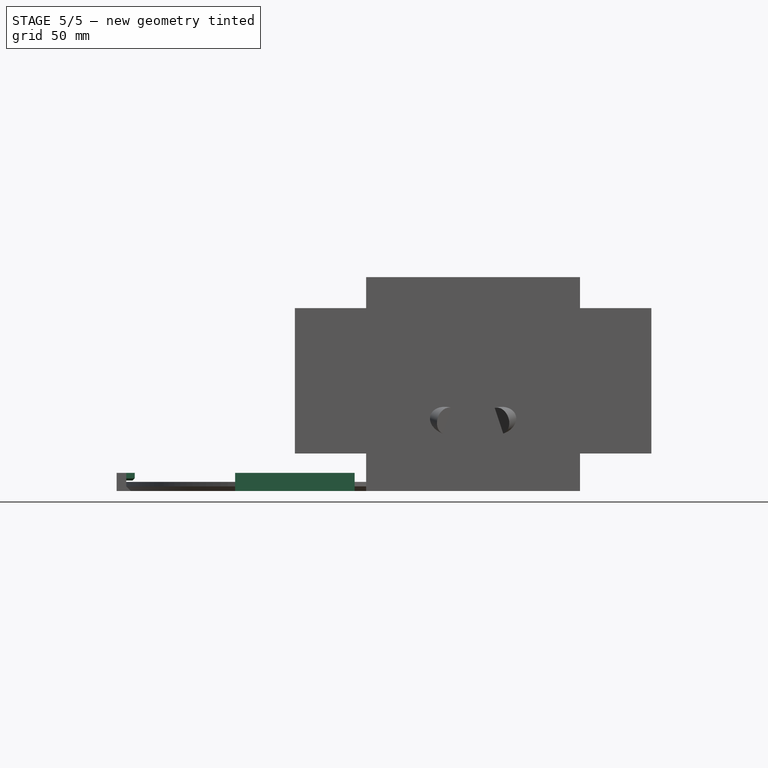
[diagram: stage 5 of 5 — front view after this stage's code; geometry added in this stage tinted green]
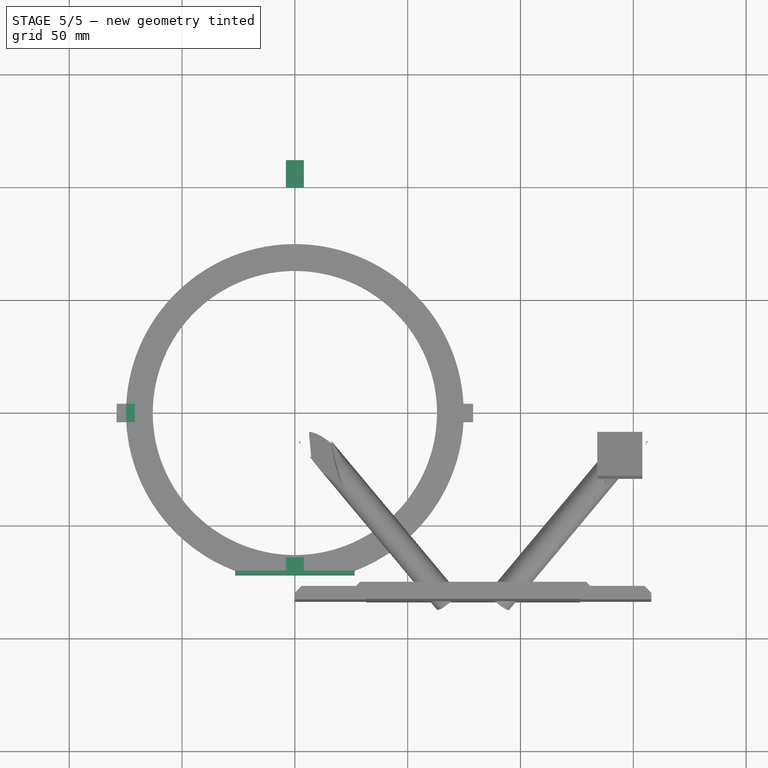
[diagram: stage 5 of 5 — top view after this stage's code; geometry added in this stage tinted green]
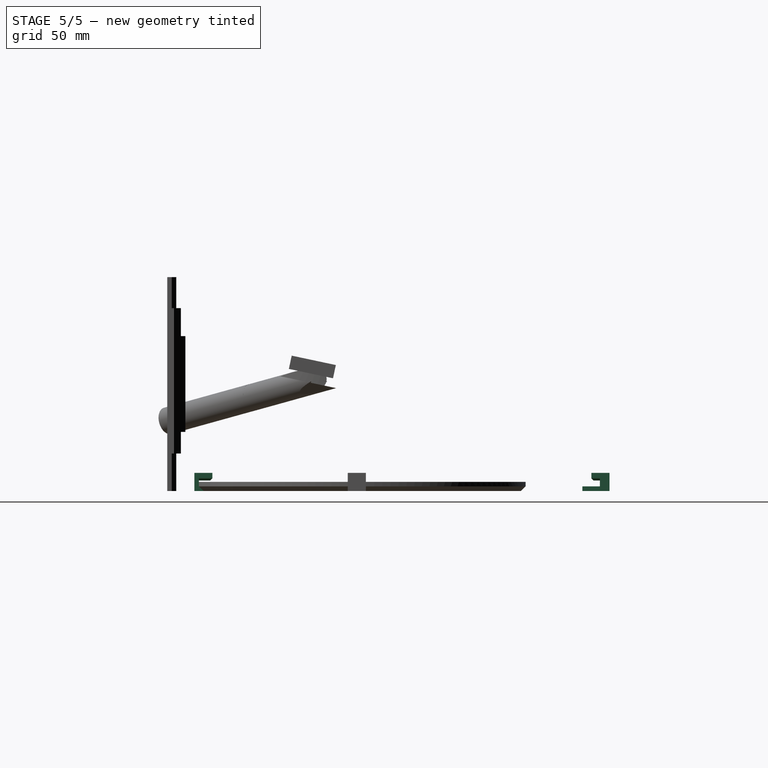
[diagram: stage 5 of 5 — right view after this stage's code; geometry added in this stage tinted green]
FEATURE [Part::Box] Box003  label="bitHolderTop"
  AttacherType = Attacher::AttachEngine3D
  Height = 2
  Length = 8
  Placement = pos=(-4,100,0) rot=(0,0,1;0rad)
  Width = 12
FEATURE [Part::Box] Box008  label="holderBitLeft003"
  AttacherType = Attacher::AttachEngine3D
  Height = 2
  Length = 8
  Placement = pos=(-4,71,2) rot=(0,0,1;0rad)
  Width = 8
FEATURE [Part::Box] Box009  label="bitHolderTopCutout001"
  AttacherType = Attacher::AttachEngine3D
  Height = 4
  Length = 8
  Placement = pos=(-4,67,-2) rot=(0,0,1;0rad)
  Width = 12
FEATURE [Sketcher::SketchObject] Sketch002
  FullyConstrained = true
  sketch-geometry (3):
    g0: Circle CenterX=-3.1415e-12 CenterY=5.6243e-12 CenterZ=0 NormalX=0 NormalY=0 NormalZ=1 AngleXU=0 Radius=63
    g1: ArcOfCircle CenterX=-3.1415e-12 CenterY=5.6243e-12 CenterZ=0 NormalX=0 NormalY=0 NormalZ=1 AngleXU=0 Radius=74.8482 StartAngle=5.07429 EndAngle=10.6337
    g2: LineSegment StartX=-26.5 StartY=-70.0001 StartZ=0 EndX=26.5 EndY=-70.0001 EndZ=0
  constraints (6):
    c: Block(g0)
    c: Coincident(g1,g0)
    c: Block(g1)
    c: Coincident(g2,g1)
    c: Coincident(g2,g1)
    c: Horizontal(g2)
FEATURE [Part::Extrusion] Extrude002  label="mainHolderRing003"
  Base = -> Sketch002
  Dir = (0,0,1)
  DirMode = 2
  FaceMakerClass = Part::FaceMakerBullseye
  LengthFwd = 4
  LengthRev = 0
  Solid = true
  Symmetric = false
FEATURE [Part::Chamfer] Chamfer001
  Base = -> Extrude002
  Edges = 1 edges r=2: [Edge3]
FEATURE [Part::Cut] Cut002  label="mainHolderRing004"
  Base = -> Chamfer001
  Tool = -> Box009
FEATURE [Part::Cut] Cut003  label="bitHolderTop001"
  Base = -> Box008
  Tool = -> Cut002
FEATURE [Part::Box] Box010  label="holderBitLeft004"
  AttacherType = Attacher::AttachEngine3D
  Height = 2
  Length = 8
  Placement = pos=(-4,71,2) rot=(0,0,1;0rad)
  Width = 8
FEATURE [Part::Box] Box011  label="bitHolderTopCutout002"
  AttacherType = Attacher::AttachEngine3D
  Height = 4
  Length = 8
  Placement = pos=(-4,67,-2) rot=(0,0,1;0rad)
  Width = 12
FEATURE [Sketcher::SketchObject] Sketch003
  FullyConstrained = true
  sketch-geometry (3):
    g0: Circle CenterX=-3.1415e-12 CenterY=5.6243e-12 CenterZ=0 NormalX=0 NormalY=0 NormalZ=1 AngleXU=0 Radius=63
    g1: ArcOfCircle CenterX=-3.1415e-12 CenterY=5.6243e-12 CenterZ=0 NormalX=0 NormalY=0 NormalZ=1 AngleXU=0 Radius=74.8482 StartAngle=5.07429 EndAngle=10.6337
    g2: LineSegment StartX=-26.5 StartY=-70.0001 StartZ=0 EndX=26.5 EndY=-70.0001 EndZ=0
  constraints (6):
    c: Block(g0)
    c: Coincident(g1,g0)
    c: Block(g1)
    c: Coincident(g2,g1)
    c: Coincident(g2,g1)
    c: Horizontal(g2)
FEATURE [Part::Extrusion] Extrude003  label="mainHolderRing006"
  Base = -> Sketch003
  Dir = (0,0,1)
  DirMode = 2
  FaceMakerClass = Part::FaceMakerBullseye
  LengthFwd = 4
  LengthRev = 0
  Solid = true
  Symmetric = false
FEATURE [Part::Chamfer] Chamfer002
  Base = -> Extrude003
  Edges = 1 edges r=2: [Edge3]
FEATURE [Part::Cut] Cut005  label="mainHolderRing005"
  Base = -> Chamfer002
  Tool = -> Box011
FEATURE [Part::Cut] Cut004  label="bitHolderTop002"
  Base = -> Box010
  Placement = pos=(0,0,2) rot=(0,0,1;0rad)
  Tool = -> Cut005
FEATURE [Part::Box] Box012  label="holderBitLeft005"
  AttacherType = Attacher::AttachEngine3D
  Height = 2
  Length = 8
  Placement = pos=(-4,71,2) rot=(0,0,1;0rad)
  Width = 8
FEATURE [Part::Box] Box013  label="bitHolderTopCutout003"
  AttacherType = Attacher::AttachEngine3D
  Height = 4
  Length = 8
  Placement = pos=(-4,67,-2) rot=(0,0,1;0rad)
  Width = 12
FEATURE [Sketcher::SketchObject] Sketch004
  FullyConstrained = true
  sketch-geometry (3):
    g0: Circle CenterX=-3.1415e-12 CenterY=5.6243e-12 CenterZ=0 NormalX=0 NormalY=0 NormalZ=1 AngleXU=0 Radius=63
    g1: ArcOfCircle CenterX=-3.1415e-12 CenterY=5.6243e-12 CenterZ=0 NormalX=0 NormalY=0 NormalZ=1 AngleXU=0 Radius=74.8482 StartAngle=5.07429 EndAngle=10.6337
    g2: LineSegment StartX=-26.5 StartY=-70.0001 StartZ=0 EndX=26.5 EndY=-70.0001 EndZ=0
  constraints (6):
    c: Block(g0)
    c: Coincident(g1,g0)
    c: Block(g1)
    c: Coincident(g2,g1)
    c: Coincident(g2,g1)
    c: Horizontal(g2)
FEATURE [Part::Extrusion] Extrude004  label="mainHolderRing008"
  Base = -> Sketch004
  Dir = (0,0,1)
  DirMode = 2
  FaceMakerClass = Part::FaceMakerBullseye
  LengthFwd = 4
  LengthRev = 0
  Solid = true
  Symmetric = false
FEATURE [Part::Chamfer] Chamfer003
  Base = -> Extrude004
  Edges = 1 edges r=2: [Edge3]
FEATURE [Part::Cut] Cut007  label="mainHolderRing007"
  Base = -> Chamfer003
  Tool = -> Box013
FEATURE [Part::Cut] Cut006  label="bitHolderTop003"
  Base = -> Box012
  Placement = pos=(0,0,4) rot=(0,0,1;0rad)
  Tool = -> Cut007
FEATURE [Part::Box] Box014  label="bitHoldertop006"
  AttacherType = Attacher::AttachEngine3D
  Height = 3.4
  Length = 8
  Placement = pos=(-4,71,4.6) rot=(0,0,1;0rad)
  Width = 8
FEATURE [Part::MultiFuse] Fusion001  label="holderTop"
  Placement = pos=(0,33,0) rot=(0,0,1;0rad)
  Shapes = -> [Cut003,Cut004,Cut006,Box014]
FEATURE [Part::Chamfer] Chamfer004
  Base = -> Fusion001
  Edges = 1 edges r=1: [Edge16]
FEATURE [Part::Chamfer] Chamfer009
  Base = -> Chamfer004
  Edges = 1 edges r=1: [Edge1]
FEATURE [Part::Chamfer] Chamfer010
  Base = -> Chamfer009
  Edges = 1 edges r=1: [Edge32]
FEATURE [Part::Box] Box017  label="holderBottom002"
  AttacherType = Attacher::AttachEngine3D
  Height = 3.4
  Length = 8
  Placement = pos=(-4,-72,4.6) rot=(0,0,1;0rad)
  Width = 8
FEATURE [Part::Chamfer] Chamfer013  label="holderBottom003"
  Base = -> Box017
  Edges = 3 edges r=1: [Edge4,Edge8,Edge11]
FEATURE [Part::Box] Box016  label="holderBottom001"
  AttacherType = Attacher::AttachEngine3D
  Height = 4
  Length = 53
  Placement = pos=(-26.5,-72,4) rot=(0,0,1;0rad)
  Width = 2
FEATURE [Part::Box] Box015  label="holderBottom"
  AttacherType = Attacher::AttachEngine3D
  Height = 4
  Length = 53
  Placement = pos=(-26.5,-72,0) rot=(0,0,1;0rad)
  Width = 4.5
FEATURE [Part::Box] Box006  label="holderBitLeft002"
  AttacherType = Attacher::AttachEngine3D
  Height = 3.4
  Length = 8
  Placement = pos=(-79,-4,4.6) rot=(0,0,1;0rad)
  Width = 8
FEATURE [Part::Chamfer] Chamfer005
  Base = -> Box006
  Edges = 1 edges r=1: [Edge8]
FEATURE [Part::Chamfer] Chamfer011
  Base = -> Chamfer005
  Edges = 1 edges r=1: [Edge5]
FEATURE [Part::Chamfer] Chamfer012
  Base = -> Chamfer011
  Edges = 1 edges r=1: [Edge16]
FEATURE [Part::MultiFuse] Fusion003  label="ringHolder"
  Shapes = -> [Box,Box002,Cut,Cut001,Chamfer008,Chamfer012,Box015,Box016,Chamfer013]
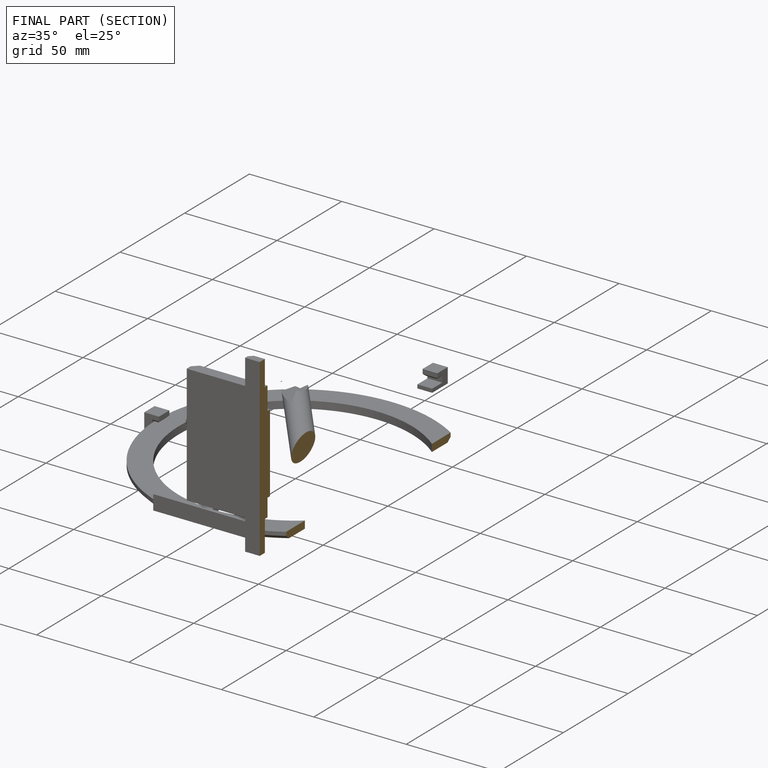
[diagram: finished part — half-section view (interior)]
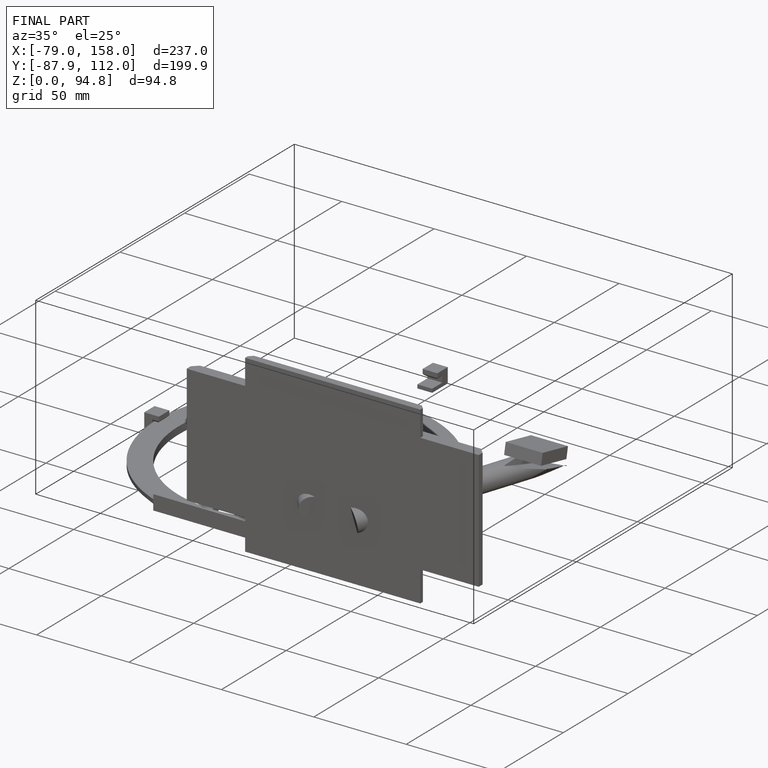
[diagram: finished part — iso view with bounding-box wireframe]
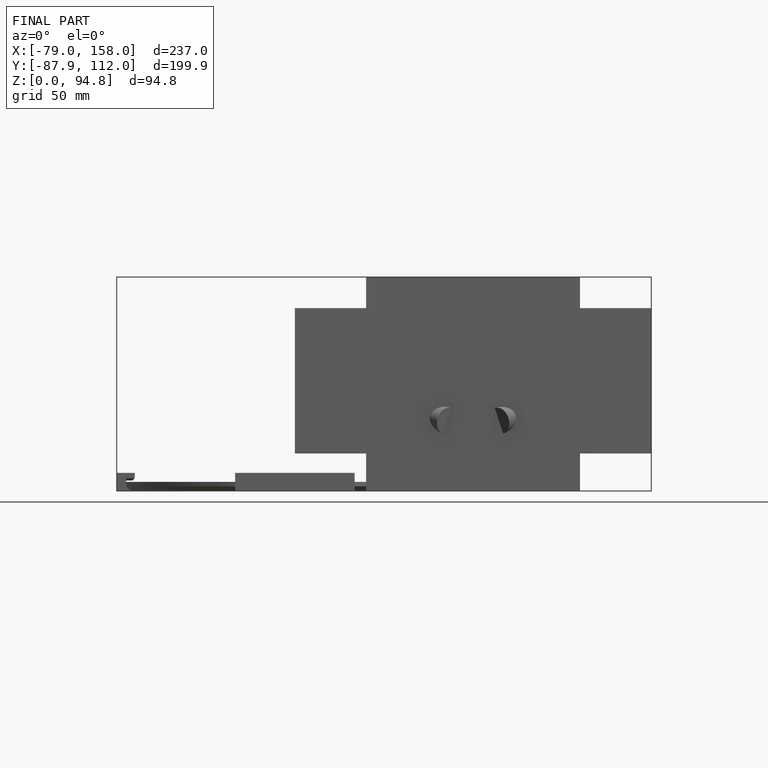
[diagram: finished part — front view with bounding-box wireframe]
